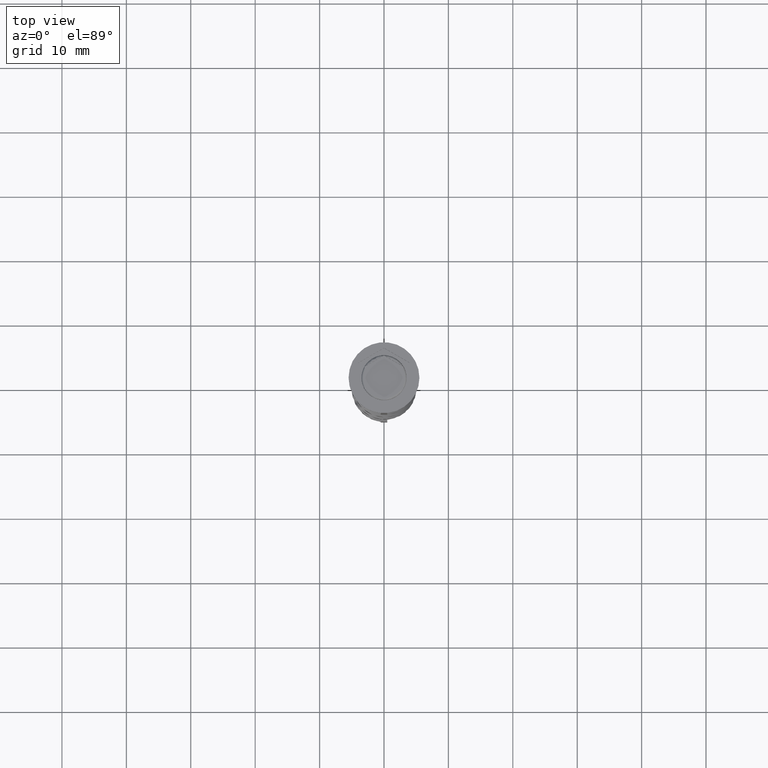
[diagram: clean part render]
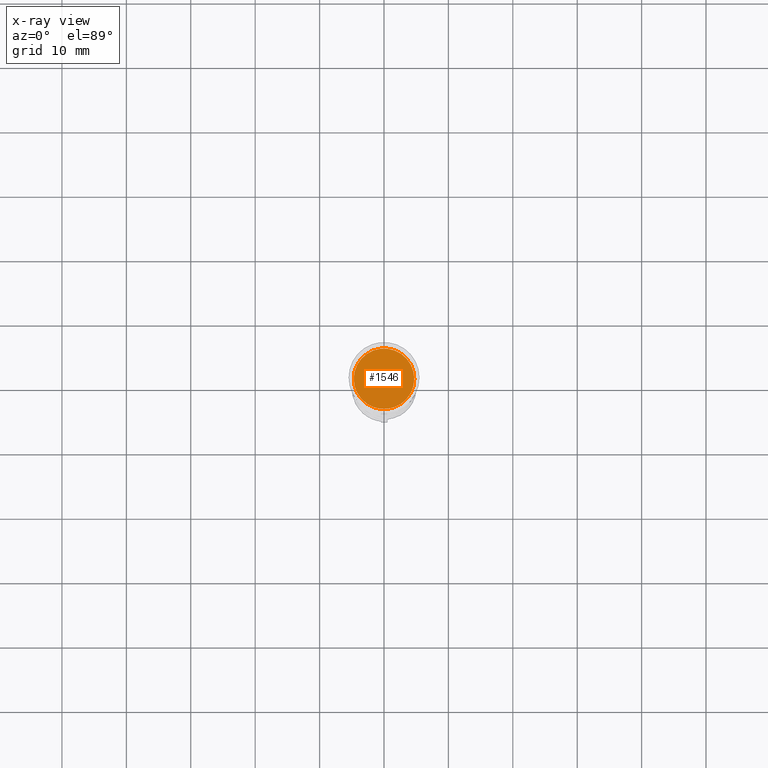
[diagram: x-ray — body ghosted, one internal face saturated and labeled with its STEP entity id]
A machine part, top view, then the same camera in x-ray: the body is ghosted and one INTERNAL B-rep face — a face not visible from any outside direction — is saturated and labeled: STEP entity #1546.
In plain terms, the highlighted planar face has unit normal (0, 0, -1).
Its self-contained STEP definition (entity closure, byte-faithful):
#164 = CARTESIAN_POINT ( 'NONE',  ( 0.000000000000000000, 0.000000000000000000, -10.50000000000000178 ) ) ;
#453 = DIRECTION ( 'NONE',  ( 0.000000000000000000, 0.000000000000000000, -1.000000000000000000 ) ) ;
#746 = VERTEX_POINT ( 'NONE', #2130 ) ;
#965 = VERTEX_POINT ( 'NONE', #3378 ) ;
#1001 = CARTESIAN_POINT ( 'NONE',  ( 0.000000000000000000, 0.000000000000000000, -10.50000000000000178 ) ) ;
#1022 = DIRECTION ( 'NONE',  ( -0.000000000000000000, -0.000000000000000000, 1.000000000000000000 ) ) ;
#1067 = CIRCLE ( 'NONE', #2243, 4.700000000000001066 ) ;
#1354 = EDGE_LOOP ( 'NONE', ( #3177, #2248 ) ) ;
#1536 = FACE_OUTER_BOUND ( 'NONE', #1354, .T. ) ;
#1546 = ADVANCED_FACE ( 'NONE', ( #1536 ), #1846, .F. ) ;
#1571 = DIRECTION ( 'NONE',  ( -1.000000000000000000, 0.000000000000000000, -0.000000000000000000 ) ) ;
#1590 = AXIS2_PLACEMENT_3D ( 'NONE', #1001, #3001, #2113 ) ;
#1721 = EDGE_CURVE ( 'NONE', #965, #746, #2489, .T. ) ;
#1846 = PLANE ( 'NONE',  #3312 ) ;
#2113 = DIRECTION ( 'NONE',  ( -1.000000000000000000, 0.000000000000000000, 0.000000000000000000 ) ) ;
#2130 = CARTESIAN_POINT ( 'NONE',  ( -4.700000000000001066, 0.000000000000000000, -10.50000000000000178 ) ) ;
#2133 = DIRECTION ( 'NONE',  ( -1.000000000000000000, 0.000000000000000000, 0.000000000000000000 ) ) ;
#2243 = AXIS2_PLACEMENT_3D ( 'NONE', #2725, #1022, #2133 ) ;
#2248 = ORIENTED_EDGE ( 'NONE', *, *, #1721, .T. ) ;
#2489 = CIRCLE ( 'NONE', #1590, 4.700000000000001066 ) ;
#2725 = CARTESIAN_POINT ( 'NONE',  ( 0.000000000000000000, 0.000000000000000000, -10.50000000000000178 ) ) ;
#2752 = EDGE_CURVE ( 'NONE', #746, #965, #1067, .T. ) ;
#3001 = DIRECTION ( 'NONE',  ( -0.000000000000000000, -0.000000000000000000, 1.000000000000000000 ) ) ;
#3177 = ORIENTED_EDGE ( 'NONE', *, *, #2752, .T. ) ;
#3312 = AXIS2_PLACEMENT_3D ( 'NONE', #164, #453, #1571 ) ;
#3378 = CARTESIAN_POINT ( 'NONE',  ( 4.700000000000001066, 5.939536975864663955E-16, -10.50000000000000178 ) ) ;